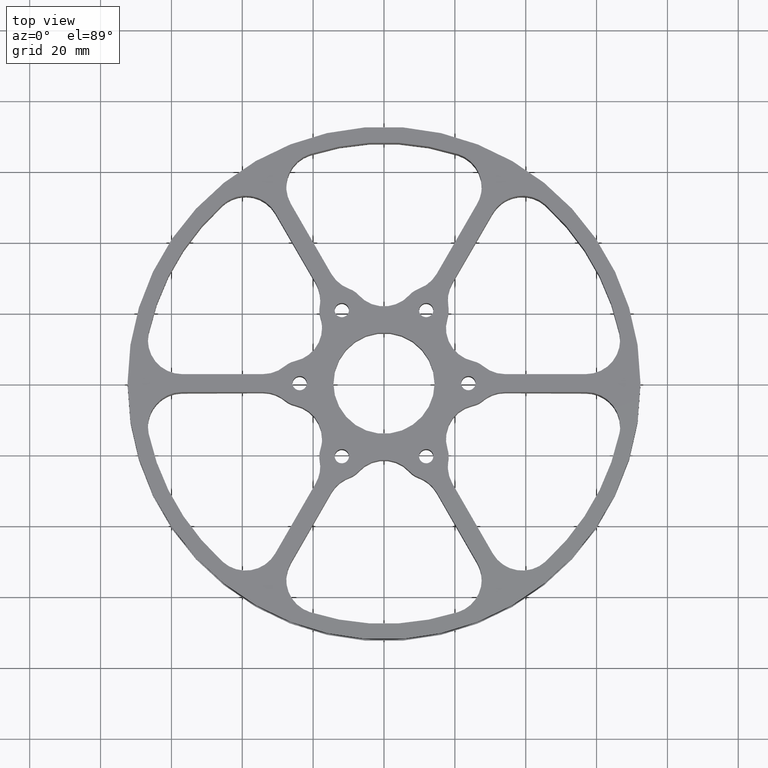
[diagram: clean part render]
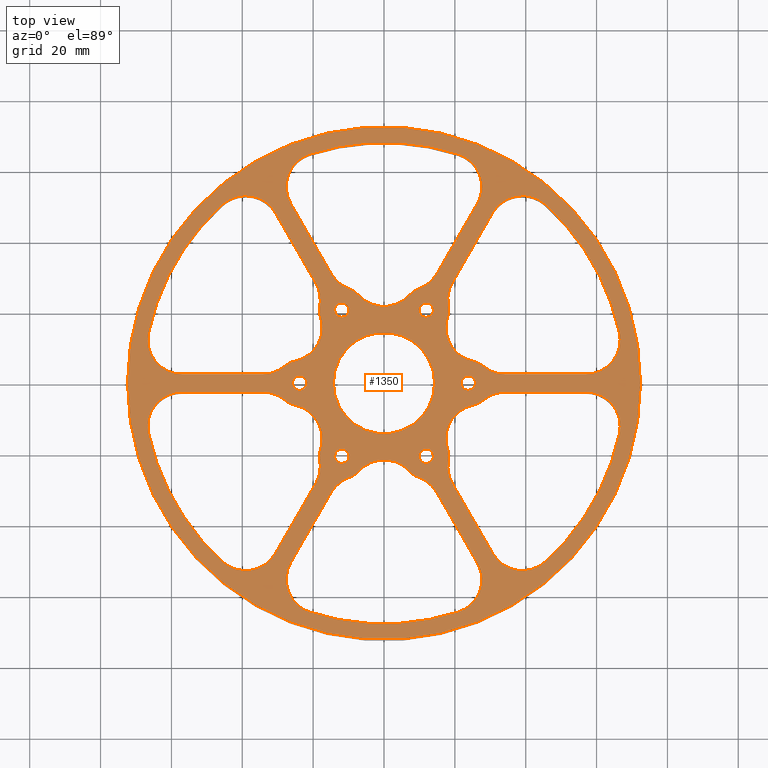
[diagram: same view with one face highlighted and labeled with its STEP entity id]
A machine part, top view. The second image highlights one B-rep face of the part: STEP entity #1350.
In plain terms, the highlighted planar face has unit normal (0, 0, 1).
Its self-contained STEP definition (entity closure, byte-faithful):
#3 = EDGE_CURVE ( 'NONE', #1620, #2620, #2794, .T. ) ;
#7 = CIRCLE ( 'NONE', #1625, 0.3800000000000001710 ) ;
#9 = ORIENTED_EDGE ( 'NONE', *, *, #1623, .T. ) ;
#14 = VERTEX_POINT ( 'NONE', #384 ) ;
#16 = AXIS2_PLACEMENT_3D ( 'NONE', #2337, #2662, #81 ) ;
#18 = ORIENTED_EDGE ( 'NONE', *, *, #2880, .F. ) ;
#19 = CIRCLE ( 'NONE', #1039, 0.07949999999999979305 ) ;
#33 = CIRCLE ( 'NONE', #2475, 0.07949999999999979305 ) ;
#37 = DIRECTION ( 'NONE',  ( -0.0000000000000000000, 3.061616997868408286E-17, -1.000000000000000000 ) ) ;
#42 = CIRCLE ( 'NONE', #4104, 0.07949999999999979305 ) ;
#56 = EDGE_CURVE ( 'NONE', #4003, #144, #696, .T. ) ;
#57 = EDGE_LOOP ( 'NONE', ( #322, #2660, #1137, #627, #3569, #1668, #642, #2638, #1188, #3950, #2010, #423 ) ) ;
#63 = CARTESIAN_POINT ( 'NONE',  ( -0.7146683537490232663, 0.8568895183025647677, 1.125000000000000000 ) ) ;
#72 = VERTEX_POINT ( 'NONE', #539 ) ;
#79 = CARTESIAN_POINT ( 'NONE',  ( 1.099422267961141841, -0.1904761904762019009, 1.125000000000000000 ) ) ;
#81 = DIRECTION ( 'NONE',  ( 0.0000000000000000000, 1.000000000000000000, 0.0000000000000000000 ) ) ;
#82 = CARTESIAN_POINT ( 'NONE',  ( -0.5861695172525729358, 1.215275385729623014, 1.125000000000000000 ) ) ;
#85 = VERTEX_POINT ( 'NONE', #559 ) ;
#93 = DIRECTION ( 'NONE',  ( -0.4999999999999920619, 0.8660254037844433705, 0.0000000000000000000 ) ) ;
#98 = DIRECTION ( 'NONE',  ( -0.4999999999999919509, 0.8660254037844433705, 0.0000000000000000000 ) ) ;
#103 = DIRECTION ( 'NONE',  ( 1.000000000000000000, 0.0000000000000000000, 0.0000000000000000000 ) ) ;
#106 = VERTEX_POINT ( 'NONE', #2113 ) ;
#108 = CARTESIAN_POINT ( 'NONE',  ( 1.423167634191664366, -2.264998650107610256, 1.125000000000000000 ) ) ;
#109 = CARTESIAN_POINT ( 'NONE',  ( -2.615838364180005815, -0.5594771241829875619, 1.125000000000000000 ) ) ;
#116 = CARTESIAN_POINT ( 'NONE',  ( -1.537813510787212845, -1.703571133249299985, 1.125000000000000000 ) ) ;
#117 = ORIENTED_EDGE ( 'NONE', *, *, #2861, .F. ) ;
#119 = EDGE_CURVE ( 'NONE', #2062, #904, #1812, .T. ) ;
#127 = CARTESIAN_POINT ( 'NONE',  ( -0.7064291231541066640, 2.183571133249319285, 1.125000000000000000 ) ) ;
#131 = ORIENTED_EDGE ( 'NONE', *, *, #2688, .F. ) ;
#137 = ORIENTED_EDGE ( 'NONE', *, *, #2569, .T. ) ;
#139 = EDGE_CURVE ( 'NONE', #2214, #2300, #3856, .T. ) ;
#142 = CARTESIAN_POINT ( 'NONE',  ( 1.086429123154122323, -2.183571133249313956, 1.125000000000000000 ) ) ;
#144 = VERTEX_POINT ( 'NONE', #3001 ) ;
#145 = CARTESIAN_POINT ( 'NONE',  ( 0.7187500000000109912, 0.8118988160479085892, 1.125000000000000000 ) ) ;
#156 = EDGE_CURVE ( 'NONE', #106, #2342, #3015, .T. ) ;
#162 = CIRCLE ( 'NONE', #2722, 0.3799999999999999489 ) ;
#164 = AXIS2_PLACEMENT_3D ( 'NONE', #2008, #1412, #1368 ) ;
#171 = DIRECTION ( 'NONE',  ( -0.5000000000000042188, -0.8660254037844361541, 0.0000000000000000000 ) ) ;
#179 = ORIENTED_EDGE ( 'NONE', *, *, #1496, .T. ) ;
#190 = DIRECTION ( 'NONE',  ( 0.0000000000000000000, 1.000000000000000000, 0.0000000000000000000 ) ) ;
#192 = CIRCLE ( 'NONE', #2992, 0.3800000000000000600 ) ;
#196 = VERTEX_POINT ( 'NONE', #328 ) ;
#201 = EDGE_CURVE ( 'NONE', #3125, #1911, #3116, .T. ) ;
#206 = ORIENTED_EDGE ( 'NONE', *, *, #4093, .T. ) ;
#211 = AXIS2_PLACEMENT_3D ( 'NONE', #1942, #2894, #2565 ) ;
#216 = AXIS2_PLACEMENT_3D ( 'NONE', #556, #2703, #2175 ) ;
#222 = CARTESIAN_POINT ( 'NONE',  ( 2.244242633941349041, 0.09999999999998378242, 1.125000000000000000 ) ) ;
#229 = AXIS2_PLACEMENT_3D ( 'NONE', #1824, #3774, #1499 ) ;
#230 = VERTEX_POINT ( 'NONE', #1934 ) ;
#246 = DIRECTION ( 'NONE',  ( 0.0000000000000000000, 1.000000000000000000, 0.0000000000000000000 ) ) ;
#247 = VERTEX_POINT ( 'NONE', #3340 ) ;
#252 = CIRCLE ( 'NONE', #421, 0.3800000000000000600 ) ;
#255 = AXIS2_PLACEMENT_3D ( 'NONE', #2676, #433, #2353 ) ;
#258 = DIRECTION ( 'NONE',  ( -0.5000000000000042188, -0.8660254037844361541, 0.0000000000000000000 ) ) ;
#268 = CIRCLE ( 'NONE', #1510, 0.2500000000000066613 ) ;
#277 = ORIENTED_EDGE ( 'NONE', *, *, #3477, .F. ) ;
#286 = DIRECTION ( 'NONE',  ( 1.000000000000000000, 0.0000000000000000000, 0.0000000000000000000 ) ) ;
#296 = VERTEX_POINT ( 'NONE', #3176 ) ;
#300 = CARTESIAN_POINT ( 'NONE',  ( 1.792440584468755649, 1.985643913482299183, 1.125000000000000000 ) ) ;
#302 = DIRECTION ( 'NONE',  ( -0.0000000000000000000, -0.0000000000000000000, -1.000000000000000000 ) ) ;
#305 = CARTESIAN_POINT ( 'NONE',  ( 0.9891476976426007983, -0.2446068587105139358, 1.125000000000000000 ) ) ;
#306 = AXIS2_PLACEMENT_3D ( 'NONE', #3091, #829, #2763 ) ;
#309 = LINE ( 'NONE', #1781, #628 ) ;
#311 = EDGE_CURVE ( 'NONE', #2741, #2307, #2111, .T. ) ;
#312 = CARTESIAN_POINT ( 'NONE',  ( 0.7187499999999980016, -0.8118988160479124749, 1.125000000000000000 ) ) ;
#313 = CIRCLE ( 'NONE', #2838, 0.2499999999999998057 ) ;
#316 = CIRCLE ( 'NONE', #1573, 0.07949999999999979305 ) ;
#319 = AXIS2_PLACEMENT_3D ( 'NONE', #1703, #2674, #98 ) ;
#320 = DIRECTION ( 'NONE',  ( 0.0000000000000000000, 0.0000000000000000000, 1.000000000000000000 ) ) ;
#322 = ORIENTED_EDGE ( 'NONE', *, *, #959, .F. ) ;
#324 = VERTEX_POINT ( 'NONE', #2881 ) ;
#328 = CARTESIAN_POINT ( 'NONE',  ( -0.7146683537490433613, -0.8568895183025518891, 1.125000000000000000 ) ) ;
#340 = DIRECTION ( 'NONE',  ( 0.5000000000000098810, 0.8660254037844329345, 0.0000000000000000000 ) ) ;
#345 = VERTEX_POINT ( 'NONE', #1031 ) ;
#353 = VECTOR ( 'NONE', #1618, 39.37007874015748854 ) ;
#359 = EDGE_CURVE ( 'NONE', #1117, #3430, #3696, .T. ) ;
#362 = CIRCLE ( 'NONE', #2194, 0.07949999999999979305 ) ;
#364 = FACE_BOUND ( 'NONE', #859, .T. ) ;
#374 = DIRECTION ( 'NONE',  ( 0.0000000000000000000, 1.000000000000000000, 0.0000000000000000000 ) ) ;
#376 = CARTESIAN_POINT ( 'NONE',  ( 1.377727649040773375E-16, 0.0000000000000000000, 1.125000000000000666 ) ) ;
#377 = EDGE_CURVE ( 'NONE', #3146, #1579, #2052, .T. ) ;
#382 = CARTESIAN_POINT ( 'NONE',  ( 0.2570798638144932147, -1.405275385729615856, 1.125000000000000000 ) ) ;
#384 = CARTESIAN_POINT ( 'NONE',  ( 2.624242633941350711, 0.4799999999999837730, 1.125000000000000000 ) ) ;
#389 = CIRCLE ( 'NONE', #255, 0.3800000000000002265 ) ;
#393 = CIRCLE ( 'NONE', #3989, 0.2500000000000067168 ) ;
#398 = EDGE_CURVE ( 'NONE', #144, #4003, #2729, .T. ) ;
#403 = ORIENTED_EDGE ( 'NONE', *, *, #3536, .F. ) ;
#405 = EDGE_CURVE ( 'NONE', #1334, #3119, #42, .T. ) ;
#408 = VERTEX_POINT ( 'NONE', #3473 ) ;
#419 = LINE ( 'NONE', #1544, #1040 ) ;
#420 = EDGE_CURVE ( 'NONE', #247, #1117, #3078, .T. ) ;
#421 = AXIS2_PLACEMENT_3D ( 'NONE', #1967, #1486, #2378 ) ;
#423 = ORIENTED_EDGE ( 'NONE', *, *, #460, .T. ) ;
#426 = EDGE_CURVE ( 'NONE', #1868, #3125, #2316, .T. ) ;
#432 = DIRECTION ( 'NONE',  ( 0.0000000000000000000, 0.0000000000000000000, 1.000000000000000000 ) ) ;
#433 = DIRECTION ( 'NONE',  ( 0.0000000000000000000, 0.0000000000000000000, 1.000000000000000000 ) ) ;
#443 = ORIENTED_EDGE ( 'NONE', *, *, #3913, .F. ) ;
#445 = CARTESIAN_POINT ( 'NONE',  ( 1.249962553434775137, -2.364998650107609457, 1.125000000000000000 ) ) ;
#453 = AXIS2_PLACEMENT_3D ( 'NONE', #848, #2781, #1798 ) ;
#458 = CARTESIAN_POINT ( 'NONE',  ( 1.249962553434841528, 2.364998650107573930, 1.125000000000000000 ) ) ;
#460 = EDGE_CURVE ( 'NONE', #2400, #3809, #831, .T. ) ;
#474 = DIRECTION ( 'NONE',  ( 0.0000000000000000000, 0.0000000000000000000, 1.000000000000000000 ) ) ;
#475 = EDGE_CURVE ( 'NONE', #1449, #324, #2982, .T. ) ;
#477 = AXIS2_PLACEMENT_3D ( 'NONE', #1381, #3972, #1075 ) ;
#485 = DIRECTION ( 'NONE',  ( 0.0000000000000000000, 0.0000000000000000000, 1.000000000000000000 ) ) ;
#493 = DIRECTION ( 'NONE',  ( 1.000000000000000000, 8.986342084421918015E-16, 0.0000000000000000000 ) ) ;
#502 = DIRECTION ( 'NONE',  ( -0.5000000000000101030, -0.8660254037844328234, 0.0000000000000000000 ) ) ;
#504 = ORIENTED_EDGE ( 'NONE', *, *, #3395, .F. ) ;
#506 = EDGE_CURVE ( 'NONE', #4034, #85, #2459, .T. ) ;
#508 = CARTESIAN_POINT ( 'NONE',  ( -0.6876521980593468530, 0.6164092839504820009, 1.125000000000000000 ) ) ;
#520 = VECTOR ( 'NONE', #3717, 39.37007874015748143 ) ;
#526 = CIRCLE ( 'NONE', #2367, 0.3800000000000000600 ) ;
#530 = CARTESIAN_POINT ( 'NONE',  ( 1.035518776592210699, -1.993571133249317562, 1.125000000000000000 ) ) ;
#539 = CARTESIAN_POINT ( 'NONE',  ( -1.345544115262075291, -0.09999999999998827882, 1.125000000000000000 ) ) ;
#544 = DIRECTION ( 'NONE',  ( -0.5000000000000041078, -0.8660254037844362651, 0.0000000000000000000 ) ) ;
#556 = CARTESIAN_POINT ( 'NONE',  ( -1.067652198059360735, -0.6164092839504583532, 1.125000000000000000 ) ) ;
#559 = CARTESIAN_POINT ( 'NONE',  ( 1.099422267961141619, 0.1904761904761857194, 1.125000000000000000 ) ) ;
#560 = AXIS2_PLACEMENT_3D ( 'NONE', #1757, #3700, #1432 ) ;
#561 = CARTESIAN_POINT ( 'NONE',  ( -0.4687500000000098810, -0.8118988160479059246, 1.125000000000000444 ) ) ;
#575 = CARTESIAN_POINT ( 'NONE',  ( 0.0000000000000000000, 0.0000000000000000000, 1.125000000000000000 ) ) ;
#596 = CARTESIAN_POINT ( 'NONE',  ( -0.4687500000000098810, -0.8913988160479057177, 1.125000000000000444 ) ) ;
#608 = CARTESIAN_POINT ( 'NONE',  ( 1.345544115262077289, 0.4799999999999883249, 1.125000000000000000 ) ) ;
#615 = CARTESIAN_POINT ( 'NONE',  ( -0.7064096024045146693, -0.7343236048981258701, 1.125000000000000000 ) ) ;
#617 = EDGE_CURVE ( 'NONE', #3417, #2604, #3733, .T. ) ;
#618 = DIRECTION ( 'NONE',  ( 0.4999999999999918954, -0.8660254037844433705, 0.0000000000000000000 ) ) ;
#620 = ORIENTED_EDGE ( 'NONE', *, *, #2926, .T. ) ;
#627 = ORIENTED_EDGE ( 'NONE', *, *, #420, .F. ) ;
#628 = VECTOR ( 'NONE', #171, 39.37007874015748854 ) ;
#632 = CIRCLE ( 'NONE', #1771, 0.07949999999999979305 ) ;
#633 = CARTESIAN_POINT ( 'NONE',  ( 0.8233977797112317365, -2.545121037665322827, 1.125000000000000000 ) ) ;
#642 = ORIENTED_EDGE ( 'NONE', *, *, #1751, .F. ) ;
#659 = ORIENTED_EDGE ( 'NONE', *, *, #765, .T. ) ;
#670 = DIRECTION ( 'NONE',  ( 0.0000000000000000000, 0.0000000000000000000, 1.000000000000000000 ) ) ;
#671 = VERTEX_POINT ( 'NONE', #2386 ) ;
#678 = ORIENTED_EDGE ( 'NONE', *, *, #2715, .T. ) ;
#685 = DIRECTION ( 'NONE',  ( 0.0000000000000000000, 0.0000000000000000000, 1.000000000000000000 ) ) ;
#687 = DIRECTION ( 'NONE',  ( 0.4999999999999855671, -0.8660254037844469233, 0.0000000000000000000 ) ) ;
#692 = VERTEX_POINT ( 'NONE', #145 ) ;
#696 = CIRCLE ( 'NONE', #2749, 0.07949999999999979305 ) ;
#703 = CARTESIAN_POINT ( 'NONE',  ( -0.2827380952380753043, 0.9789304636086408884, 1.125000000000000000 ) ) ;
#705 = FACE_BOUND ( 'NONE', #1465, .T. ) ;
#714 = DIRECTION ( 'NONE',  ( 0.0000000000000000000, 0.0000000000000000000, 1.000000000000000000 ) ) ;
#725 = DIRECTION ( 'NONE',  ( 0.0000000000000000000, 0.0000000000000000000, 1.000000000000000000 ) ) ;
#733 = DIRECTION ( 'NONE',  ( -0.5000000000000084377, -0.8660254037844337116, 0.0000000000000000000 ) ) ;
#735 = AXIS2_PLACEMENT_3D ( 'NONE', #1084, #2222, #1898 ) ;
#738 = CIRCLE ( 'NONE', #1745, 0.3800000000000001710 ) ;
#740 = VERTEX_POINT ( 'NONE', #63 ) ;
#741 = CARTESIAN_POINT ( 'NONE',  ( -1.423167634191696562, -2.264998650107590272, 1.125000000000000000 ) ) ;
#744 = EDGE_CURVE ( 'NONE', #2576, #2864, #2325, .T. ) ;
#749 = ORIENTED_EDGE ( 'NONE', *, *, #3564, .T. ) ;
#755 = AXIS2_PLACEMENT_3D ( 'NONE', #2904, #320, #2573 ) ;
#762 = DIRECTION ( 'NONE',  ( 1.000000000000000000, 0.0000000000000000000, 0.0000000000000000000 ) ) ;
#763 = ORIENTED_EDGE ( 'NONE', *, *, #1158, .F. ) ;
#764 = CIRCLE ( 'NONE', #3584, 0.3800000000000000600 ) ;
#765 = EDGE_CURVE ( 'NONE', #1409, #1613, #362, .T. ) ;
#766 = AXIS2_PLACEMENT_3D ( 'NONE', #127, #2056, #3995 ) ;
#772 = EDGE_CURVE ( 'NONE', #2556, #3983, #313, .T. ) ;
#778 = CARTESIAN_POINT ( 'NONE',  ( -0.7064291231541689475, -2.183571133249298857, 1.125000000000000000 ) ) ;
#790 = CARTESIAN_POINT ( 'NONE',  ( 0.2827380952380822432, -0.9789304636086388900, 1.125000000000000000 ) ) ;
#794 = VERTEX_POINT ( 'NONE', #4023 ) ;
#796 = EDGE_CURVE ( 'NONE', #3755, #14, #2122, .T. ) ;
#802 = CARTESIAN_POINT ( 'NONE',  ( -1.067652198059346969, 0.6164092839504820009, 1.125000000000000000 ) ) ;
#808 = ORIENTED_EDGE ( 'NONE', *, *, #2599, .T. ) ;
#809 = AXIS2_PLACEMENT_3D ( 'NONE', #3428, #1481, #2265 ) ;
#819 = CARTESIAN_POINT ( 'NONE',  ( 2.233285734820535038E-14, 1.232818567900930473, 1.125000000000000000 ) ) ;
#829 = DIRECTION ( 'NONE',  ( 0.0000000000000000000, 0.0000000000000000000, 1.000000000000000000 ) ) ;
#831 = CIRCLE ( 'NONE', #2695, 0.3800000000000000600 ) ;
#837 = VERTEX_POINT ( 'NONE', #3752 ) ;
#841 = ORIENTED_EDGE ( 'NONE', *, *, #1474, .F. ) ;
#848 = CARTESIAN_POINT ( 'NONE',  ( 0.0000000000000000000, 0.0000000000000000000, 1.125000000000000000 ) ) ;
#849 = DIRECTION ( 'NONE',  ( 0.5000000000000039968, 0.8660254037844364872, 0.0000000000000000000 ) ) ;
#854 = CARTESIAN_POINT ( 'NONE',  ( 0.7593745980094865899, 1.115275385729609159, 1.125000000000000000 ) ) ;
#859 = EDGE_LOOP ( 'NONE', ( #620, #3382 ) ) ;
#863 = ORIENTED_EDGE ( 'NONE', *, *, #156, .T. ) ;
#873 = CARTESIAN_POINT ( 'NONE',  ( 0.4687499999999922839, -0.8118988160479160276, 1.125000000000000444 ) ) ;
#886 = DIRECTION ( 'NONE',  ( 1.000000000000000000, 0.0000000000000000000, 0.0000000000000000000 ) ) ;
#893 = DIRECTION ( 'NONE',  ( 1.000000000000000000, 0.0000000000000000000, 0.0000000000000000000 ) ) ;
#895 = LINE ( 'NONE', #930, #1752 ) ;
#897 = CARTESIAN_POINT ( 'NONE',  ( -1.537813510787176208, 1.703571133249333291, 1.125000000000000000 ) ) ;
#900 = EDGE_CURVE ( 'NONE', #85, #408, #2428, .T. ) ;
#904 = VERTEX_POINT ( 'NONE', #305 ) ;
#912 = CARTESIAN_POINT ( 'NONE',  ( 0.4687499999999922839, -0.8118988160479160276, 1.125000000000000444 ) ) ;
#916 = FACE_BOUND ( 'NONE', #2551, .T. ) ;
#917 = DIRECTION ( 'NONE',  ( 0.0000000000000000000, 0.0000000000000000000, 1.000000000000000000 ) ) ;
#930 = CARTESIAN_POINT ( 'NONE',  ( -2.673130187626483689, -0.09999999999998161748, 1.125000000000000000 ) ) ;
#941 = CIRCLE ( 'NONE', #1904, 0.3799999999999998934 ) ;
#945 = AXIS2_PLACEMENT_3D ( 'NONE', #3347, #1080, #1406 ) ;
#946 = CIRCLE ( 'NONE', #453, 2.850000000000000533 ) ;
#952 = DIRECTION ( 'NONE',  ( 0.0000000000000000000, 1.000000000000000000, 0.0000000000000000000 ) ) ;
#958 = CARTESIAN_POINT ( 'NONE',  ( 1.088464251447556874, -0.9252753857296240891, 1.125000000000000000 ) ) ;
#959 = EDGE_CURVE ( 'NONE', #3805, #3809, #4182, .T. ) ;
#972 = ORIENTED_EDGE ( 'NONE', *, *, #398, .T. ) ;
#975 = DIRECTION ( 'NONE',  ( 0.5000000000000144329, 0.8660254037844303809, 0.0000000000000000000 ) ) ;
#986 = EDGE_CURVE ( 'NONE', #1216, #1145, #4189, .T. ) ;
#1009 = VECTOR ( 'NONE', #1194, 39.37007874015748143 ) ;
#1010 = ORIENTED_EDGE ( 'NONE', *, *, #3740, .T. ) ;
#1012 = CARTESIAN_POINT ( 'NONE',  ( -1.249962553434758483, 2.364998650107618339, 1.125000000000000000 ) ) ;
#1013 = DIRECTION ( 'NONE',  ( 1.000000000000000000, 0.0000000000000000000, 0.0000000000000000000 ) ) ;
#1020 = VERTEX_POINT ( 'NONE', #82 ) ;
#1027 = CARTESIAN_POINT ( 'NONE',  ( 1.792440584468727005, -1.985643913482325607, 1.125000000000000000 ) ) ;
#1031 = CARTESIAN_POINT ( 'NONE',  ( -1.035518776592253554, -1.993571133249295801, 1.125000000000000000 ) ) ;
#1036 = CIRCLE ( 'NONE', #2806, 2.674999999999999378 ) ;
#1038 = CARTESIAN_POINT ( 'NONE',  ( 0.9375000000000003331, -1.991952822626510649E-14, 1.125000000000000444 ) ) ;
#1039 = AXIS2_PLACEMENT_3D ( 'NONE', #1038, #1349, #3021 ) ;
#1040 = VECTOR ( 'NONE', #3032, 39.37007874015748143 ) ;
#1044 = EDGE_CURVE ( 'NONE', #408, #2786, #3803, .T. ) ;
#1058 = ORIENTED_EDGE ( 'NONE', *, *, #377, .F. ) ;
#1060 = CARTESIAN_POINT ( 'NONE',  ( -2.244242633941346377, 0.1000000000000318828, 1.125000000000000000 ) ) ;
#1062 = EDGE_CURVE ( 'NONE', #1270, #1469, #2097, .T. ) ;
#1064 = DIRECTION ( 'NONE',  ( 0.0000000000000000000, 0.0000000000000000000, -1.000000000000000000 ) ) ;
#1067 = EDGE_CURVE ( 'NONE', #692, #2866, #2257, .T. ) ;
#1075 = DIRECTION ( 'NONE',  ( 1.000000000000000000, 7.189073667537533228E-16, 0.0000000000000000000 ) ) ;
#1080 = DIRECTION ( 'NONE',  ( -0.0000000000000000000, -0.0000000000000000000, -1.000000000000000000 ) ) ;
#1084 = CARTESIAN_POINT ( 'NONE',  ( 2.244242633941350817, 0.4799999999999837730, 1.125000000000000000 ) ) ;
#1087 = VERTEX_POINT ( 'NONE', #1846 ) ;
#1109 = DIRECTION ( 'NONE',  ( -1.000000000000000000, 5.041501808283719551E-15, 0.0000000000000000000 ) ) ;
#1117 = VERTEX_POINT ( 'NONE', #1622 ) ;
#1125 = EDGE_CURVE ( 'NONE', #1213, #1216, #3088, .T. ) ;
#1132 = DIRECTION ( 'NONE',  ( 0.0000000000000000000, 0.0000000000000000000, 1.000000000000000000 ) ) ;
#1133 = CIRCLE ( 'NONE', #945, 0.3800000000000000600 ) ;
#1137 = ORIENTED_EDGE ( 'NONE', *, *, #359, .F. ) ;
#1145 = VERTEX_POINT ( 'NONE', #1199 ) ;
#1158 = EDGE_CURVE ( 'NONE', #196, #1620, #2774, .T. ) ;
#1160 = DIRECTION ( 'NONE',  ( -1.000000000000000000, 0.0000000000000000000, 2.428309327701566812E-16 ) ) ;
#1167 = AXIS2_PLACEMENT_3D ( 'NONE', #2461, #1064, #258 ) ;
#1173 = CARTESIAN_POINT ( 'NONE',  ( 2.850000000000000533, 3.490243377569957540E-16, 1.125000000000000000 ) ) ;
#1177 = CARTESIAN_POINT ( 'NONE',  ( -0.4687499999999922839, 0.7323988160479162346, 1.125000000000000444 ) ) ;
#1178 = CARTESIAN_POINT ( 'NONE',  ( -0.2570798638145246895, -1.405275385729608972, 1.125000000000000000 ) ) ;
#1183 = DIRECTION ( 'NONE',  ( -1.224646799147353454E-16, 0.0000000000000000000, -1.000000000000000000 ) ) ;
#1188 = ORIENTED_EDGE ( 'NONE', *, *, #2245, .F. ) ;
#1194 = DIRECTION ( 'NONE',  ( 1.000000000000000000, -5.041501808283719551E-15, -0.0000000000000000000 ) ) ;
#1199 = CARTESIAN_POINT ( 'NONE',  ( -0.7084642514475723019, -0.9252753857296076578, 1.125000000000000000 ) ) ;
#1200 = DIRECTION ( 'NONE',  ( 0.4999999999999916733, -0.8660254037844433705, 0.0000000000000000000 ) ) ;
#1201 = EDGE_CURVE ( 'NONE', #2300, #1343, #1207, .T. ) ;
#1203 = DIRECTION ( 'NONE',  ( -0.0000000000000000000, -3.061616997868370692E-17, -1.000000000000000000 ) ) ;
#1207 = CIRCLE ( 'NONE', #1374, 0.3799999999999998379 ) ;
#1213 = VERTEX_POINT ( 'NONE', #3896 ) ;
#1216 = VERTEX_POINT ( 'NONE', #2993 ) ;
#1221 = FACE_BOUND ( 'NONE', #3585, .T. ) ;
#1223 = DIRECTION ( 'NONE',  ( 0.0000000000000000000, -0.0000000000000000000, -1.000000000000000000 ) ) ;
#1239 = AXIS2_PLACEMENT_3D ( 'NONE', #2946, #685, #2614 ) ;
#1242 = CARTESIAN_POINT ( 'NONE',  ( 0.7146683537490433613, 0.8568895183025518891, 1.125000000000000000 ) ) ;
#1253 = CARTESIAN_POINT ( 'NONE',  ( 0.9375000000000003331, -1.991952822626510649E-14, 1.125000000000000444 ) ) ;
#1255 = EDGE_CURVE ( 'NONE', #14, #2786, #3685, .T. ) ;
#1257 = ORIENTED_EDGE ( 'NONE', *, *, #3348, .F. ) ;
#1266 = ORIENTED_EDGE ( 'NONE', *, *, #1286, .T. ) ;
#1267 = DIRECTION ( 'NONE',  ( 0.0000000000000000000, 0.0000000000000000000, 1.000000000000000000 ) ) ;
#1270 = VERTEX_POINT ( 'NONE', #2039 ) ;
#1272 = CARTESIAN_POINT ( 'NONE',  ( 0.4687500000000094924, 0.8118988160479059246, 1.125000000000000000 ) ) ;
#1280 = AXIS2_PLACEMENT_3D ( 'NONE', #116, #4028, #2197 ) ;
#1282 = CARTESIAN_POINT ( 'NONE',  ( 2.244242633941350817, 0.4799999999999837730, 1.125000000000000000 ) ) ;
#1286 = EDGE_CURVE ( 'NONE', #2345, #4043, #1133, .T. ) ;
#1294 = DIRECTION ( 'NONE',  ( 0.5000000000000042188, 0.8660254037844362651, 0.0000000000000000000 ) ) ;
#1300 = CIRCLE ( 'NONE', #3354, 0.07949999999999979305 ) ;
#1307 = DIRECTION ( 'NONE',  ( -0.0000000000000000000, -0.0000000000000000000, -1.000000000000000000 ) ) ;
#1317 = FACE_BOUND ( 'NONE', #3927, .T. ) ;
#1330 = LINE ( 'NONE', #2269, #3415 ) ;
#1333 = AXIS2_PLACEMENT_3D ( 'NONE', #3434, #1183, #1160 ) ;
#1334 = VERTEX_POINT ( 'NONE', #2067 ) ;
#1337 = CARTESIAN_POINT ( 'NONE',  ( -2.244242633941340603, 0.4800000000000319011, 1.125000000000000000 ) ) ;
#1338 = EDGE_LOOP ( 'NONE', ( #9, #3393 ) ) ;
#1341 = CARTESIAN_POINT ( 'NONE',  ( 0.4687499999999981681, -0.8118988160479124749, 1.125000000000000000 ) ) ;
#1343 = VERTEX_POINT ( 'NONE', #4000 ) ;
#1347 = ORIENTED_EDGE ( 'NONE', *, *, #1067, .F. ) ;
#1349 = DIRECTION ( 'NONE',  ( -0.0000000000000000000, -3.061616997868444648E-17, -1.000000000000000000 ) ) ;
#1350 = ADVANCED_FACE ( 'NONE', ( #3526, #2115, #2596, #2164, #705, #1831, #3745, #1317, #1425, #1221, #3141, #3811, #916, #364 ), #3065, .T. ) ;
#1353 = ORIENTED_EDGE ( 'NONE', *, *, #56, .T. ) ;
#1359 = EDGE_CURVE ( 'NONE', #3465, #3146, #309, .T. ) ;
#1360 = AXIS2_PLACEMENT_3D ( 'NONE', #3160, #1672, #3623 ) ;
#1361 = ORIENTED_EDGE ( 'NONE', *, *, #3368, .T. ) ;
#1368 = DIRECTION ( 'NONE',  ( 0.4999999999999979461, -0.8660254037844398178, 0.0000000000000000000 ) ) ;
#1374 = AXIS2_PLACEMENT_3D ( 'NONE', #3965, #1696, #93 ) ;
#1376 = CARTESIAN_POINT ( 'NONE',  ( 0.9891476976426036849, 0.2446068587104990588, 1.125000000000000000 ) ) ;
#1380 = DIRECTION ( 'NONE',  ( 0.0000000000000000000, 0.0000000000000000000, 1.000000000000000000 ) ) ;
#1381 = CARTESIAN_POINT ( 'NONE',  ( 1.537813510787187976, -1.703571133249321967, 1.125000000000000000 ) ) ;
#1386 = AXIS2_PLACEMENT_3D ( 'NONE', #802, #1132, #3392 ) ;
#1406 = DIRECTION ( 'NONE',  ( 1.000000000000000000, 0.0000000000000000000, 0.0000000000000000000 ) ) ;
#1409 = VERTEX_POINT ( 'NONE', #2779 ) ;
#1412 = DIRECTION ( 'NONE',  ( 0.0000000000000000000, 0.0000000000000000000, 1.000000000000000000 ) ) ;
#1425 = FACE_BOUND ( 'NONE', #2161, .T. ) ;
#1430 = AXIS2_PLACEMENT_3D ( 'NONE', #4157, #917, #4082 ) ;
#1432 = DIRECTION ( 'NONE',  ( -0.5000000000000101030, -0.8660254037844327124, 0.0000000000000000000 ) ) ;
#1444 = ORIENTED_EDGE ( 'NONE', *, *, #1795, .F. ) ;
#1449 = VERTEX_POINT ( 'NONE', #2149 ) ;
#1454 = DIRECTION ( 'NONE',  ( 1.000000000000000000, 0.0000000000000000000, -0.0000000000000000000 ) ) ;
#1455 = ORIENTED_EDGE ( 'NONE', *, *, #3145, .T. ) ;
#1465 = EDGE_LOOP ( 'NONE', ( #841, #1536, #3204, #3977, #2187, #1735, #1629, #1347, #2558, #1058, #3211, #1361 ) ) ;
#1469 = VERTEX_POINT ( 'NONE', #3120 ) ;
#1470 = EDGE_CURVE ( 'NONE', #2620, #1449, #1782, .T. ) ;
#1474 = EDGE_CURVE ( 'NONE', #3755, #4005, #1036, .T. ) ;
#1481 = DIRECTION ( 'NONE',  ( 0.0000000000000000000, 0.0000000000000000000, 1.000000000000000000 ) ) ;
#1486 = DIRECTION ( 'NONE',  ( -0.0000000000000000000, -0.0000000000000000000, -1.000000000000000000 ) ) ;
#1496 = EDGE_CURVE ( 'NONE', #3372, #2429, #526, .T. ) ;
#1499 = DIRECTION ( 'NONE',  ( -0.5000000000000102141, -0.8660254037844327124, 0.0000000000000000000 ) ) ;
#1503 = VERTEX_POINT ( 'NONE', #2808 ) ;
#1510 = AXIS2_PLACEMENT_3D ( 'NONE', #4144, #2215, #1200 ) ;
#1514 = ORIENTED_EDGE ( 'NONE', *, *, #475, .F. ) ;
#1522 = DIRECTION ( 'NONE',  ( 0.4999999999999918954, -0.8660254037844433705, 0.0000000000000000000 ) ) ;
#1532 = VECTOR ( 'NONE', #687, 39.37007874015748854 ) ;
#1536 = ORIENTED_EDGE ( 'NONE', *, *, #796, .T. ) ;
#1544 = CARTESIAN_POINT ( 'NONE',  ( -1.423167634191648601, 2.264998650107620026, 1.125000000000000000 ) ) ;
#1556 = DIRECTION ( 'NONE',  ( -0.0000000000000000000, 0.0000000000000000000, -1.000000000000000000 ) ) ;
#1572 = EDGE_CURVE ( 'NONE', #1343, #4100, #268, .T. ) ;
#1573 = AXIS2_PLACEMENT_3D ( 'NONE', #3994, #2013, #3002 ) ;
#1574 = DIRECTION ( 'NONE',  ( 0.0000000000000000000, 1.000000000000000000, 0.0000000000000000000 ) ) ;
#1576 = ORIENTED_EDGE ( 'NONE', *, *, #744, .T. ) ;
#1578 = EDGE_CURVE ( 'NONE', #1503, #794, #3500, .T. ) ;
#1579 = VERTEX_POINT ( 'NONE', #1242 ) ;
#1599 = DIRECTION ( 'NONE',  ( -0.0000000000000000000, -0.0000000000000000000, -1.000000000000000000 ) ) ;
#1607 = EDGE_CURVE ( 'NONE', #740, #3712, #3768, .T. ) ;
#1613 = VERTEX_POINT ( 'NONE', #4156 ) ;
#1618 = DIRECTION ( 'NONE',  ( 0.4999999999999935052, -0.8660254037844422603, 0.0000000000000000000 ) ) ;
#1620 = VERTEX_POINT ( 'NONE', #615 ) ;
#1622 = CARTESIAN_POINT ( 'NONE',  ( 0.7593745980094688264, -1.115275385729621593, 1.125000000000000000 ) ) ;
#1623 = EDGE_CURVE ( 'NONE', #3119, #1334, #1300, .T. ) ;
#1625 = AXIS2_PLACEMENT_3D ( 'NONE', #1178, #3111, #849 ) ;
#1628 = CARTESIAN_POINT ( 'NONE',  ( -0.4687499999999922839, 0.8913988160479158207, 1.125000000000000444 ) ) ;
#1629 = ORIENTED_EDGE ( 'NONE', *, *, #2474, .F. ) ;
#1631 = EDGE_CURVE ( 'NONE', #3417, #2345, #2975, .T. ) ;
#1638 = VERTEX_POINT ( 'NONE', #4180 ) ;
#1646 = CARTESIAN_POINT ( 'NONE',  ( -0.9375000000000004441, 1.336309304147087792E-14, 1.125000000000000444 ) ) ;
#1665 = CARTESIAN_POINT ( 'NONE',  ( 0.5861695172526182329, 1.215275385729601254, 1.125000000000000000 ) ) ;
#1668 = ORIENTED_EDGE ( 'NONE', *, *, #772, .F. ) ;
#1669 = AXIS2_PLACEMENT_3D ( 'NONE', #3776, #2476, #893 ) ;
#1671 = CARTESIAN_POINT ( 'NONE',  ( -0.7593745980094610548, 1.115275385729626922, 1.125000000000000000 ) ) ;
#1672 = DIRECTION ( 'NONE',  ( 0.0000000000000000000, 0.0000000000000000000, 1.000000000000000000 ) ) ;
#1694 = DIRECTION ( 'NONE',  ( -1.000000000000000000, 0.0000000000000000000, 0.0000000000000000000 ) ) ;
#1696 = DIRECTION ( 'NONE',  ( 0.0000000000000000000, 0.0000000000000000000, 1.000000000000000000 ) ) ;
#1698 = ORIENTED_EDGE ( 'NONE', *, *, #4098, .F. ) ;
#1702 = ORIENTED_EDGE ( 'NONE', *, *, #139, .F. ) ;
#1703 = CARTESIAN_POINT ( 'NONE',  ( 0.0000000000000000000, 0.0000000000000000000, 1.125000000000000000 ) ) ;
#1708 = EDGE_CURVE ( 'NONE', #1718, #1020, #2597, .T. ) ;
#1718 = VERTEX_POINT ( 'NONE', #2947 ) ;
#1720 = AXIS2_PLACEMENT_3D ( 'NONE', #1253, #3523, #1574 ) ;
#1735 = ORIENTED_EDGE ( 'NONE', *, *, #506, .F. ) ;
#1744 = CARTESIAN_POINT ( 'NONE',  ( 2.244242633941343712, -0.4800000000000162470, 1.125000000000000000 ) ) ;
#1745 = AXIS2_PLACEMENT_3D ( 'NONE', #2732, #2856, #3800 ) ;
#1751 = EDGE_CURVE ( 'NONE', #904, #2556, #1787, .T. ) ;
#1752 = VECTOR ( 'NONE', #1109, 39.37007874015748143 ) ;
#1757 = CARTESIAN_POINT ( 'NONE',  ( 0.2570798638145346815, 1.405275385729606752, 1.125000000000000000 ) ) ;
#1771 = AXIS2_PLACEMENT_3D ( 'NONE', #2802, #1935, #3087 ) ;
#1780 = ORIENTED_EDGE ( 'NONE', *, *, #1927, .F. ) ;
#1781 = CARTESIAN_POINT ( 'NONE',  ( 1.423167634191696562, 2.264998650107590272, 1.125000000000000000 ) ) ;
#1782 = CIRCLE ( 'NONE', #216, 0.3800000000000001710 ) ;
#1785 = DIRECTION ( 'NONE',  ( -0.5000000000000039968, -0.8660254037844362651, 0.0000000000000000000 ) ) ;
#1787 = CIRCLE ( 'NONE', #1430, 0.3800000000000002820 ) ;
#1791 = CIRCLE ( 'NONE', #3262, 0.2500000000000067168 ) ;
#1795 = EDGE_CURVE ( 'NONE', #3712, #3829, #162, .T. ) ;
#1798 = DIRECTION ( 'NONE',  ( 1.000000000000000000, 0.0000000000000000000, 0.0000000000000000000 ) ) ;
#1799 = EDGE_LOOP ( 'NONE', ( #678, #137 ) ) ;
#1812 = CIRCLE ( 'NONE', #4050, 0.2500000000000067168 ) ;
#1824 = CARTESIAN_POINT ( 'NONE',  ( -0.4687499999999860667, 0.8118988160479192473, 1.125000000000000000 ) ) ;
#1831 = FACE_BOUND ( 'NONE', #57, .T. ) ;
#1838 = CARTESIAN_POINT ( 'NONE',  ( 0.5861695172525814845, -1.215275385729619018, 1.125000000000000000 ) ) ;
#1846 = CARTESIAN_POINT ( 'NONE',  ( -0.4687500000000098810, -0.7323988160479061316, 1.125000000000000444 ) ) ;
#1850 = DIRECTION ( 'NONE',  ( 1.000000000000000000, 0.0000000000000000000, 0.0000000000000000000 ) ) ;
#1858 = CARTESIAN_POINT ( 'NONE',  ( -0.4687499999999922839, 0.8118988160479160276, 1.125000000000000444 ) ) ;
#1865 = CARTESIAN_POINT ( 'NONE',  ( -2.244242633941350817, -0.4799999999999837730, 1.125000000000000000 ) ) ;
#1868 = VERTEX_POINT ( 'NONE', #790 ) ;
#1869 = VECTOR ( 'NONE', #975, 39.37007874015748854 ) ;
#1874 = DIRECTION ( 'NONE',  ( 0.0000000000000000000, 0.0000000000000000000, -1.000000000000000000 ) ) ;
#1875 = EDGE_CURVE ( 'NONE', #671, #345, #3046, .T. ) ;
#1893 = AXIS2_PLACEMENT_3D ( 'NONE', #3458, #1307, #2541 ) ;
#1898 = DIRECTION ( 'NONE',  ( 1.000000000000000000, 0.0000000000000000000, 0.0000000000000000000 ) ) ;
#1902 = EDGE_CURVE ( 'NONE', #2604, #837, #2731, .T. ) ;
#1904 = AXIS2_PLACEMENT_3D ( 'NONE', #2868, #670, #2785 ) ;
#1911 = VERTEX_POINT ( 'NONE', #2548 ) ;
#1912 = VERTEX_POINT ( 'NONE', #4071 ) ;
#1918 = CARTESIAN_POINT ( 'NONE',  ( 0.9374999999999998890, -7.307693383051903666E-15, 1.125000000000000000 ) ) ;
#1922 = AXIS2_PLACEMENT_3D ( 'NONE', #1337, #3276, #1013 ) ;
#1927 = EDGE_CURVE ( 'NONE', #1968, #3925, #4053, .T. ) ;
#1929 = CARTESIAN_POINT ( 'NONE',  ( 2.244242633941343712, -0.4800000000000162470, 1.125000000000000000 ) ) ;
#1930 = LINE ( 'NONE', #2739, #520 ) ;
#1934 = CARTESIAN_POINT ( 'NONE',  ( -0.3847539142120867672, 1.047365708778755788, 1.125000000000000000 ) ) ;
#1935 = DIRECTION ( 'NONE',  ( -0.0000000000000000000, 3.061616997868408286E-17, -1.000000000000000000 ) ) ;
#1942 = CARTESIAN_POINT ( 'NONE',  ( -0.9375000000000000000, 0.0000000000000000000, 1.125000000000000000 ) ) ;
#1946 = ORIENTED_EDGE ( 'NONE', *, *, #1125, .F. ) ;
#1958 = EDGE_CURVE ( 'NONE', #2156, #1638, #3659, .T. ) ;
#1964 = LINE ( 'NONE', #458, #1869 ) ;
#1967 = CARTESIAN_POINT ( 'NONE',  ( 0.7064291231541844907, 2.183571133249294416, 1.125000000000000000 ) ) ;
#1968 = VERTEX_POINT ( 'NONE', #2350 ) ;
#1983 = CIRCLE ( 'NONE', #1360, 0.3799999999999998934 ) ;
#1994 = DIRECTION ( 'NONE',  ( 0.4999999999999980571, -0.8660254037844398178, 0.0000000000000000000 ) ) ;
#2008 = CARTESIAN_POINT ( 'NONE',  ( 0.0000000000000000000, 0.0000000000000000000, 1.125000000000000000 ) ) ;
#2010 = ORIENTED_EDGE ( 'NONE', *, *, #2800, .T. ) ;
#2012 = DIRECTION ( 'NONE',  ( 1.000000000000000000, 0.0000000000000000000, 0.0000000000000000000 ) ) ;
#2013 = DIRECTION ( 'NONE',  ( -0.0000000000000000000, -3.061616997868370692E-17, -1.000000000000000000 ) ) ;
#2016 = AXIS2_PLACEMENT_3D ( 'NONE', #1272, #1223, #340 ) ;
#2020 = DIRECTION ( 'NONE',  ( 0.4999999999999983902, -0.8660254037844395958, 0.0000000000000000000 ) ) ;
#2039 = CARTESIAN_POINT ( 'NONE',  ( 1.086429123154184495, 2.183571133249294416, 1.125000000000000000 ) ) ;
#2048 = CIRCLE ( 'NONE', #560, 0.3800000000000000600 ) ;
#2050 = AXIS2_PLACEMENT_3D ( 'NONE', #2233, #302, #2557 ) ;
#2052 = CIRCLE ( 'NONE', #2232, 0.3799999999999998934 ) ;
#2056 = DIRECTION ( 'NONE',  ( -0.0000000000000000000, -0.0000000000000000000, -1.000000000000000000 ) ) ;
#2059 = VERTEX_POINT ( 'NONE', #2587 ) ;
#2061 = AXIS2_PLACEMENT_3D ( 'NONE', #819, #2754, #502 ) ;
#2062 = VERTEX_POINT ( 'NONE', #79 ) ;
#2067 = CARTESIAN_POINT ( 'NONE',  ( 0.4687500000000154321, 0.7323988160479028009, 1.125000000000000444 ) ) ;
#2075 = CIRCLE ( 'NONE', #3959, 0.07949999999999979305 ) ;
#2097 = CIRCLE ( 'NONE', #1669, 0.3800000000000000600 ) ;
#2103 = CARTESIAN_POINT ( 'NONE',  ( 0.0000000000000000000, 0.0000000000000000000, 1.125000000000000000 ) ) ;
#2107 = CIRCLE ( 'NONE', #229, 0.2500000000000067168 ) ;
#2111 = CIRCLE ( 'NONE', #2016, 0.2499999999999998890 ) ;
#2113 = CARTESIAN_POINT ( 'NONE',  ( 0.5625000000000002220, 6.888638245203861944E-17, 1.125000000000000666 ) ) ;
#2115 = FACE_BOUND ( 'NONE', #1338, .T. ) ;
#2119 = VERTEX_POINT ( 'NONE', #2555 ) ;
#2122 = CIRCLE ( 'NONE', #2615, 0.3800000000000000600 ) ;
#2129 = VERTEX_POINT ( 'NONE', #1665 ) ;
#2137 = DIRECTION ( 'NONE',  ( 0.0000000000000000000, 0.0000000000000000000, 1.000000000000000000 ) ) ;
#2149 = CARTESIAN_POINT ( 'NONE',  ( -0.9891476976426036849, -0.2446068587104990588, 1.125000000000000000 ) ) ;
#2153 = CARTESIAN_POINT ( 'NONE',  ( 0.7064096024045032340, -0.7343236048981357511, 1.125000000000000000 ) ) ;
#2154 = ORIENTED_EDGE ( 'NONE', *, *, #1470, .F. ) ;
#2156 = VERTEX_POINT ( 'NONE', #4029 ) ;
#2159 = VECTOR ( 'NONE', #2930, 39.37007874015748143 ) ;
#2161 = EDGE_LOOP ( 'NONE', ( #3459, #2395, #2876, #1444, #3872, #3495, #131, #1257, #3463, #3702, #1702, #3210 ) ) ;
#2164 = FACE_OUTER_BOUND ( 'NONE', #1799, .T. ) ;
#2170 = DIRECTION ( 'NONE',  ( 0.5000000000000042188, 0.8660254037844361541, 0.0000000000000000000 ) ) ;
#2173 = VERTEX_POINT ( 'NONE', #3296 ) ;
#2175 = DIRECTION ( 'NONE',  ( 1.000000000000000000, 0.0000000000000000000, 0.0000000000000000000 ) ) ;
#2181 = DIRECTION ( 'NONE',  ( -0.0000000000000000000, 6.123233995736766036E-17, -1.000000000000000000 ) ) ;
#2187 = ORIENTED_EDGE ( 'NONE', *, *, #900, .F. ) ;
#2189 = DIRECTION ( 'NONE',  ( 1.000000000000000000, 0.0000000000000000000, 0.0000000000000000000 ) ) ;
#2191 = DIRECTION ( 'NONE',  ( 0.0000000000000000000, 1.000000000000000000, 0.0000000000000000000 ) ) ;
#2194 = AXIS2_PLACEMENT_3D ( 'NONE', #1646, #37, #374 ) ;
#2197 = DIRECTION ( 'NONE',  ( 1.000000000000000000, 0.0000000000000000000, 0.0000000000000000000 ) ) ;
#2214 = VERTEX_POINT ( 'NONE', #1060 ) ;
#2215 = DIRECTION ( 'NONE',  ( 0.0000000000000000000, 0.0000000000000000000, -1.000000000000000000 ) ) ;
#2222 = DIRECTION ( 'NONE',  ( -0.0000000000000000000, -0.0000000000000000000, -1.000000000000000000 ) ) ;
#2223 = EDGE_CURVE ( 'NONE', #1579, #692, #1791, .T. ) ;
#2232 = AXIS2_PLACEMENT_3D ( 'NONE', #2497, #2822, #1850 ) ;
#2233 = CARTESIAN_POINT ( 'NONE',  ( 0.9375000000000000000, 0.0000000000000000000, 1.125000000000000000 ) ) ;
#2245 = EDGE_CURVE ( 'NONE', #2173, #2062, #3722, .T. ) ;
#2249 = DIRECTION ( 'NONE',  ( 0.5000000000000041078, 0.8660254037844361541, 0.0000000000000000000 ) ) ;
#2255 = AXIS2_PLACEMENT_3D ( 'NONE', #3224, #725, #2249 ) ;
#2257 = CIRCLE ( 'NONE', #1893, 0.2500000000000067168 ) ;
#2259 = DIRECTION ( 'NONE',  ( 0.0000000000000000000, 0.0000000000000000000, 1.000000000000000000 ) ) ;
#2265 = DIRECTION ( 'NONE',  ( -1.000000000000000000, 0.0000000000000000000, 0.0000000000000000000 ) ) ;
#2269 = CARTESIAN_POINT ( 'NONE',  ( -1.249962553434825097, -2.364998650107583256, 1.125000000000000000 ) ) ;
#2270 = AXIS2_PLACEMENT_3D ( 'NONE', #2103, #4041, #1785 ) ;
#2300 = VERTEX_POINT ( 'NONE', #2927 ) ;
#2302 = EDGE_CURVE ( 'NONE', #3535, #345, #1330, .T. ) ;
#2307 = VERTEX_POINT ( 'NONE', #3034 ) ;
#2316 = CIRCLE ( 'NONE', #2255, 0.3800000000000002820 ) ;
#2325 = CIRCLE ( 'NONE', #16, 0.07949999999999979305 ) ;
#2327 = CIRCLE ( 'NONE', #1280, 0.3800000000000000600 ) ;
#2337 = CARTESIAN_POINT ( 'NONE',  ( -0.4687499999999922839, 0.8118988160479160276, 1.125000000000000444 ) ) ;
#2342 = VERTEX_POINT ( 'NONE', #2986 ) ;
#2345 = VERTEX_POINT ( 'NONE', #142 ) ;
#2350 = CARTESIAN_POINT ( 'NONE',  ( 0.8233977797113042341, 2.545121037665299291, 1.125000000000000000 ) ) ;
#2353 = DIRECTION ( 'NONE',  ( 0.4999999999999918399, -0.8660254037844433705, 0.0000000000000000000 ) ) ;
#2365 = CARTESIAN_POINT ( 'NONE',  ( -2.673130187626481469, 0.1000000000000380029, 1.125000000000000000 ) ) ;
#2367 = AXIS2_PLACEMENT_3D ( 'NONE', #1865, #4121, #2189 ) ;
#2378 = DIRECTION ( 'NONE',  ( 1.000000000000000000, -1.437814733507506646E-15, 0.0000000000000000000 ) ) ;
#2386 = CARTESIAN_POINT ( 'NONE',  ( -0.8233977797112863595, -2.545121037665305064, 1.125000000000000000 ) ) ;
#2395 = ORIENTED_EDGE ( 'NONE', *, *, #3039, .T. ) ;
#2400 = VERTEX_POINT ( 'NONE', #3716 ) ;
#2405 = DIRECTION ( 'NONE',  ( 0.0000000000000000000, 0.0000000000000000000, 1.000000000000000000 ) ) ;
#2419 = ORIENTED_EDGE ( 'NONE', *, *, #1062, .T. ) ;
#2428 = CIRCLE ( 'NONE', #3921, 0.3800000000000000600 ) ;
#2429 = VERTEX_POINT ( 'NONE', #3067 ) ;
#2436 = CARTESIAN_POINT ( 'NONE',  ( -0.2827380952381033374, -0.9789304636086320066, 1.125000000000000000 ) ) ;
#2438 = CARTESIAN_POINT ( 'NONE',  ( 0.2827380952381101653, 0.9789304636086298972, 1.125000000000000000 ) ) ;
#2439 = DIRECTION ( 'NONE',  ( 0.0000000000000000000, 1.000000000000000000, 0.0000000000000000000 ) ) ;
#2443 = ORIENTED_EDGE ( 'NONE', *, *, #1875, .T. ) ;
#2459 = CIRCLE ( 'NONE', #2050, 0.2499999999999998057 ) ;
#2461 = CARTESIAN_POINT ( 'NONE',  ( -0.4687500000000038303, -0.8118988160479092553, 1.125000000000000000 ) ) ;
#2473 = ORIENTED_EDGE ( 'NONE', *, *, #2554, .F. ) ;
#2474 = EDGE_CURVE ( 'NONE', #2866, #4034, #738, .T. ) ;
#2475 = AXIS2_PLACEMENT_3D ( 'NONE', #561, #1203, #190 ) ;
#2476 = DIRECTION ( 'NONE',  ( -0.0000000000000000000, -0.0000000000000000000, -1.000000000000000000 ) ) ;
#2497 = CARTESIAN_POINT ( 'NONE',  ( 1.088464251447572195, 0.9252753857296076578, 1.125000000000000000 ) ) ;
#2504 = EDGE_CURVE ( 'NONE', #837, #1868, #393, .T. ) ;
#2509 = AXIS2_PLACEMENT_3D ( 'NONE', #778, #2532, #2704 ) ;
#2510 = ORIENTED_EDGE ( 'NONE', *, *, #1902, .F. ) ;
#2532 = DIRECTION ( 'NONE',  ( -0.0000000000000000000, -0.0000000000000000000, -1.000000000000000000 ) ) ;
#2541 = DIRECTION ( 'NONE',  ( -1.000000000000000000, 0.0000000000000000000, 0.0000000000000000000 ) ) ;
#2548 = CARTESIAN_POINT ( 'NONE',  ( -0.3847539142121153555, -1.047365708778742244, 1.125000000000000000 ) ) ;
#2549 = AXIS2_PLACEMENT_3D ( 'NONE', #3962, #1380, #1694 ) ;
#2551 = EDGE_LOOP ( 'NONE', ( #2590, #1576 ) ) ;
#2554 = EDGE_CURVE ( 'NONE', #230, #4163, #2107, .T. ) ;
#2555 = CARTESIAN_POINT ( 'NONE',  ( -2.850000000000000533, 0.0000000000000000000, 1.125000000000000000 ) ) ;
#2556 = VERTEX_POINT ( 'NONE', #2153 ) ;
#2557 = DIRECTION ( 'NONE',  ( 1.000000000000000000, 0.0000000000000000000, 0.0000000000000000000 ) ) ;
#2558 = ORIENTED_EDGE ( 'NONE', *, *, #2223, .F. ) ;
#2561 = ORIENTED_EDGE ( 'NONE', *, *, #2775, .F. ) ;
#2565 = DIRECTION ( 'NONE',  ( -1.000000000000000000, 0.0000000000000000000, 0.0000000000000000000 ) ) ;
#2569 = EDGE_CURVE ( 'NONE', #3129, #2119, #946, .T. ) ;
#2573 = DIRECTION ( 'NONE',  ( 0.5000000000000099920, 0.8660254037844328234, 0.0000000000000000000 ) ) ;
#2576 = VERTEX_POINT ( 'NONE', #1177 ) ;
#2586 = DIRECTION ( 'NONE',  ( -0.0000000000000000000, -0.0000000000000000000, -1.000000000000000000 ) ) ;
#2587 = CARTESIAN_POINT ( 'NONE',  ( -1.792440584468755649, -1.985643913482299183, 1.125000000000000000 ) ) ;
#2590 = ORIENTED_EDGE ( 'NONE', *, *, #4015, .T. ) ;
#2596 = FACE_BOUND ( 'NONE', #3807, .T. ) ;
#2597 = LINE ( 'NONE', #1012, #1532 ) ;
#2599 = EDGE_CURVE ( 'NONE', #1087, #3025, #33, .T. ) ;
#2604 = VERTEX_POINT ( 'NONE', #1838 ) ;
#2605 = DIRECTION ( 'NONE',  ( -0.4999999999999978906, 0.8660254037844399289, 0.0000000000000000000 ) ) ;
#2614 = DIRECTION ( 'NONE',  ( 1.000000000000000000, 0.0000000000000000000, 0.0000000000000000000 ) ) ;
#2615 = AXIS2_PLACEMENT_3D ( 'NONE', #1282, #2586, #4181 ) ;
#2620 = VERTEX_POINT ( 'NONE', #3135 ) ;
#2638 = ORIENTED_EDGE ( 'NONE', *, *, #119, .F. ) ;
#2647 = CARTESIAN_POINT ( 'NONE',  ( 1.345544115262070628, -0.4800000000000097522, 1.125000000000000000 ) ) ;
#2660 = ORIENTED_EDGE ( 'NONE', *, *, #3343, .T. ) ;
#2662 = DIRECTION ( 'NONE',  ( -0.0000000000000000000, 6.123233995736766036E-17, -1.000000000000000000 ) ) ;
#2674 = DIRECTION ( 'NONE',  ( 0.0000000000000000000, 0.0000000000000000000, 1.000000000000000000 ) ) ;
#2676 = CARTESIAN_POINT ( 'NONE',  ( -1.067652198059346969, 0.6164092839504820009, 1.125000000000000000 ) ) ;
#2677 = EDGE_LOOP ( 'NONE', ( #277, #2443, #3953, #504, #2874, #4106, #4011, #2510, #2871, #3917, #1266 ) ) ;
#2688 = EDGE_CURVE ( 'NONE', #3117, #1912, #4160, .T. ) ;
#2692 = CARTESIAN_POINT ( 'NONE',  ( 1.537813510787212845, 1.703571133249299985, 1.125000000000000000 ) ) ;
#2695 = AXIS2_PLACEMENT_3D ( 'NONE', #1929, #3237, #286 ) ;
#2703 = DIRECTION ( 'NONE',  ( 0.0000000000000000000, 0.0000000000000000000, 1.000000000000000000 ) ) ;
#2704 = DIRECTION ( 'NONE',  ( 1.000000000000000000, 7.189073667537536187E-16, 0.0000000000000000000 ) ) ;
#2715 = EDGE_CURVE ( 'NONE', #2119, #3129, #3976, .T. ) ;
#2722 = AXIS2_PLACEMENT_3D ( 'NONE', #3849, #2137, #618 ) ;
#2724 = CARTESIAN_POINT ( 'NONE',  ( -0.5861695172526096842, -1.215275385729605695, 1.125000000000000000 ) ) ;
#2729 = CIRCLE ( 'NONE', #4175, 0.07949999999999979305 ) ;
#2731 = CIRCLE ( 'NONE', #4086, 0.3799999999999999489 ) ;
#2732 = CARTESIAN_POINT ( 'NONE',  ( 1.067652198059360735, 0.6164092839504583532, 1.125000000000000000 ) ) ;
#2739 = CARTESIAN_POINT ( 'NONE',  ( 2.673130187626482801, -0.1000000000000194206, 1.125000000000000000 ) ) ;
#2741 = VERTEX_POINT ( 'NONE', #2438 ) ;
#2749 = AXIS2_PLACEMENT_3D ( 'NONE', #873, #2809, #4107 ) ;
#2754 = DIRECTION ( 'NONE',  ( 0.0000000000000000000, 0.0000000000000000000, 1.000000000000000000 ) ) ;
#2763 = DIRECTION ( 'NONE',  ( 1.000000000000000000, 0.0000000000000000000, 0.0000000000000000000 ) ) ;
#2774 = CIRCLE ( 'NONE', #3636, 0.2500000000000067168 ) ;
#2775 = EDGE_CURVE ( 'NONE', #72, #2429, #895, .T. ) ;
#2779 = CARTESIAN_POINT ( 'NONE',  ( -0.9375000000000004441, -0.07949999999998642874, 1.125000000000000444 ) ) ;
#2781 = DIRECTION ( 'NONE',  ( 0.0000000000000000000, 0.0000000000000000000, 1.000000000000000000 ) ) ;
#2782 = CARTESIAN_POINT ( 'NONE',  ( 1.208723857349099706, -1.893571133249319693, 1.125000000000000000 ) ) ;
#2783 = VERTEX_POINT ( 'NONE', #2805 ) ;
#2785 = DIRECTION ( 'NONE',  ( 0.5000000000000101030, 0.8660254037844328234, 0.0000000000000000000 ) ) ;
#2786 = VERTEX_POINT ( 'NONE', #222 ) ;
#2794 = CIRCLE ( 'NONE', #1239, 0.3800000000000001710 ) ;
#2800 = EDGE_CURVE ( 'NONE', #296, #2400, #4132, .T. ) ;
#2801 = DIRECTION ( 'NONE',  ( 0.0000000000000000000, 0.0000000000000000000, -1.000000000000000000 ) ) ;
#2802 = CARTESIAN_POINT ( 'NONE',  ( -0.9375000000000004441, 1.336309304147087792E-14, 1.125000000000000444 ) ) ;
#2805 = CARTESIAN_POINT ( 'NONE',  ( -1.208723857349086606, 1.893571133249328353, 1.125000000000000000 ) ) ;
#2806 = AXIS2_PLACEMENT_3D ( 'NONE', #575, #2821, #886 ) ;
#2808 = CARTESIAN_POINT ( 'NONE',  ( 0.9375000000000003331, -0.07950000000001972156, 1.125000000000000444 ) ) ;
#2809 = DIRECTION ( 'NONE',  ( -0.0000000000000000000, -6.123233995736766036E-17, -1.000000000000000000 ) ) ;
#2814 = CARTESIAN_POINT ( 'NONE',  ( 0.4687499999999918399, -0.8118988160479160276, 1.125000000000000000 ) ) ;
#2818 = CIRCLE ( 'NONE', #2270, 2.674999999999999822 ) ;
#2821 = DIRECTION ( 'NONE',  ( 0.0000000000000000000, 0.0000000000000000000, 1.000000000000000000 ) ) ;
#2822 = DIRECTION ( 'NONE',  ( 0.0000000000000000000, 0.0000000000000000000, 1.000000000000000000 ) ) ;
#2825 = EDGE_CURVE ( 'NONE', #324, #72, #192, .T. ) ;
#2829 = DIRECTION ( 'NONE',  ( 1.000000000000000000, -7.189073667537533228E-16, 0.0000000000000000000 ) ) ;
#2832 = DIRECTION ( 'NONE',  ( -0.0000000000000000000, 3.061616997868333714E-17, -1.000000000000000000 ) ) ;
#2838 = AXIS2_PLACEMENT_3D ( 'NONE', #1341, #3279, #3607 ) ;
#2844 = ORIENTED_EDGE ( 'NONE', *, *, #3861, .T. ) ;
#2847 = CARTESIAN_POINT ( 'NONE',  ( -0.4687500000000043854, -0.8118988160479085892, 1.125000000000000000 ) ) ;
#2848 = ORIENTED_EDGE ( 'NONE', *, *, #3094, .T. ) ;
#2856 = DIRECTION ( 'NONE',  ( 0.0000000000000000000, 0.0000000000000000000, 1.000000000000000000 ) ) ;
#2858 = CIRCLE ( 'NONE', #477, 0.3800000000000000600 ) ;
#2861 = EDGE_CURVE ( 'NONE', #3372, #2059, #3736, .T. ) ;
#2863 = VECTOR ( 'NONE', #2170, 39.37007874015748854 ) ;
#2864 = VERTEX_POINT ( 'NONE', #1628 ) ;
#2866 = VERTEX_POINT ( 'NONE', #3832 ) ;
#2868 = CARTESIAN_POINT ( 'NONE',  ( -0.2570798638144832227, 1.405275385729617410, 1.125000000000000000 ) ) ;
#2871 = ORIENTED_EDGE ( 'NONE', *, *, #617, .F. ) ;
#2874 = ORIENTED_EDGE ( 'NONE', *, *, #201, .F. ) ;
#2876 = ORIENTED_EDGE ( 'NONE', *, *, #3757, .F. ) ;
#2880 = EDGE_CURVE ( 'NONE', #1020, #230, #941, .T. ) ;
#2881 = CARTESIAN_POINT ( 'NONE',  ( -1.099422267961141619, -0.1904761904761857194, 1.125000000000000000 ) ) ;
#2887 = CARTESIAN_POINT ( 'NONE',  ( 0.4687500000000154321, 0.8118988160479025940, 1.125000000000000444 ) ) ;
#2894 = DIRECTION ( 'NONE',  ( 0.0000000000000000000, 0.0000000000000000000, -1.000000000000000000 ) ) ;
#2896 = CARTESIAN_POINT ( 'NONE',  ( 0.4687499999999922839, -0.8913988160479158207, 1.125000000000000444 ) ) ;
#2904 = CARTESIAN_POINT ( 'NONE',  ( 0.0000000000000000000, 0.0000000000000000000, 1.125000000000000000 ) ) ;
#2926 = EDGE_CURVE ( 'NONE', #794, #1503, #19, .T. ) ;
#2927 = CARTESIAN_POINT ( 'NONE',  ( -1.345544115262072626, 0.1000000000000192818, 1.125000000000000000 ) ) ;
#2930 = DIRECTION ( 'NONE',  ( 1.000000000000000000, -1.426636586643326470E-14, 0.0000000000000000000 ) ) ;
#2946 = CARTESIAN_POINT ( 'NONE',  ( -1.067652198059360735, -0.6164092839504583532, 1.125000000000000000 ) ) ;
#2947 = CARTESIAN_POINT ( 'NONE',  ( -1.035518776592196710, 1.993571133249324667, 1.125000000000000000 ) ) ;
#2952 = EDGE_LOOP ( 'NONE', ( #2848, #863 ) ) ;
#2959 = CARTESIAN_POINT ( 'NONE',  ( 0.4687499999999981681, -0.8118988160479124749, 1.125000000000000000 ) ) ;
#2964 = CIRCLE ( 'NONE', #2061, 0.3800000000000002265 ) ;
#2966 = DIRECTION ( 'NONE',  ( -0.4999999999999918954, 0.8660254037844432595, 0.0000000000000000000 ) ) ;
#2975 = CIRCLE ( 'NONE', #3107, 0.3800000000000000600 ) ;
#2982 = CIRCLE ( 'NONE', #211, 0.2499999999999998057 ) ;
#2986 = CARTESIAN_POINT ( 'NONE',  ( -0.5624999999999998890, 0.0000000000000000000, 1.125000000000000888 ) ) ;
#2991 = CARTESIAN_POINT ( 'NONE',  ( 2.615838364180005815, 0.5594771241829875619, 1.125000000000000000 ) ) ;
#2992 = AXIS2_PLACEMENT_3D ( 'NONE', #3705, #2405, #103 ) ;
#2993 = CARTESIAN_POINT ( 'NONE',  ( -0.7593745980094865899, -1.115275385729609159, 1.125000000000000000 ) ) ;
#3001 = CARTESIAN_POINT ( 'NONE',  ( 0.4687499999999922839, -0.7323988160479162346, 1.125000000000000444 ) ) ;
#3002 = DIRECTION ( 'NONE',  ( 0.0000000000000000000, 1.000000000000000000, 0.0000000000000000000 ) ) ;
#3015 = CIRCLE ( 'NONE', #3411, 0.5625000000000001110 ) ;
#3021 = DIRECTION ( 'NONE',  ( 0.0000000000000000000, 1.000000000000000000, 0.0000000000000000000 ) ) ;
#3025 = VERTEX_POINT ( 'NONE', #596 ) ;
#3029 = DIRECTION ( 'NONE',  ( -0.0000000000000000000, -0.0000000000000000000, -1.000000000000000000 ) ) ;
#3032 = DIRECTION ( 'NONE',  ( -0.4999999999999875655, 0.8660254037844458130, 0.0000000000000000000 ) ) ;
#3034 = CARTESIAN_POINT ( 'NONE',  ( 0.3847539142121226829, 1.047365708778739357, 1.125000000000000000 ) ) ;
#3039 = EDGE_CURVE ( 'NONE', #2156, #2783, #3380, .T. ) ;
#3046 = CIRCLE ( 'NONE', #2509, 0.3799999999999999489 ) ;
#3065 = PLANE ( 'NONE',  #3979 ) ;
#3067 = CARTESIAN_POINT ( 'NONE',  ( -2.244242633941349041, -0.09999999999998378242, 1.125000000000000000 ) ) ;
#3078 = CIRCLE ( 'NONE', #3570, 0.3800000000000000044 ) ;
#3087 = DIRECTION ( 'NONE',  ( 0.0000000000000000000, 1.000000000000000000, 0.0000000000000000000 ) ) ;
#3088 = LINE ( 'NONE', #741, #2863 ) ;
#3091 = CARTESIAN_POINT ( 'NONE',  ( 0.0000000000000000000, 0.0000000000000000000, 1.125000000000000000 ) ) ;
#3094 = EDGE_CURVE ( 'NONE', #2342, #106, #3919, .T. ) ;
#3107 = AXIS2_PLACEMENT_3D ( 'NONE', #3544, #1599, #3873 ) ;
#3111 = DIRECTION ( 'NONE',  ( 0.0000000000000000000, 0.0000000000000000000, 1.000000000000000000 ) ) ;
#3116 = CIRCLE ( 'NONE', #1167, 0.2499999999999998890 ) ;
#3117 = VERTEX_POINT ( 'NONE', #508 ) ;
#3119 = VERTEX_POINT ( 'NONE', #3424 ) ;
#3120 = CARTESIAN_POINT ( 'NONE',  ( 1.035518776592267987, 1.993571133249288918, 1.125000000000000000 ) ) ;
#3125 = VERTEX_POINT ( 'NONE', #2436 ) ;
#3129 = VERTEX_POINT ( 'NONE', #1173 ) ;
#3135 = CARTESIAN_POINT ( 'NONE',  ( -0.6876521980593605088, -0.6164092839504583532, 1.125000000000000000 ) ) ;
#3141 = FACE_BOUND ( 'NONE', #3192, .T. ) ;
#3145 = EDGE_CURVE ( 'NONE', #1613, #1409, #632, .T. ) ;
#3146 = VERTEX_POINT ( 'NONE', #854 ) ;
#3156 = DIRECTION ( 'NONE',  ( -0.0000000000000000000, -0.0000000000000000000, -1.000000000000000000 ) ) ;
#3159 = CARTESIAN_POINT ( 'NONE',  ( 0.4687500000000154321, 0.8118988160479025940, 1.125000000000000444 ) ) ;
#3160 = CARTESIAN_POINT ( 'NONE',  ( -1.088464251447572195, -0.9252753857296076578, 1.125000000000000000 ) ) ;
#3169 = DIRECTION ( 'NONE',  ( -0.4999999999999982236, 0.8660254037844397068, 0.0000000000000000000 ) ) ;
#3176 = CARTESIAN_POINT ( 'NONE',  ( 2.244242633941346821, -0.1000000000000162981, 1.125000000000000000 ) ) ;
#3187 = DIRECTION ( 'NONE',  ( -0.4999999999999916178, 0.8660254037844433705, 0.0000000000000000000 ) ) ;
#3192 = EDGE_LOOP ( 'NONE', ( #972, #1353 ) ) ;
#3204 = ORIENTED_EDGE ( 'NONE', *, *, #1255, .T. ) ;
#3206 = CARTESIAN_POINT ( 'NONE',  ( -1.088464251447550435, 0.9252753857296316387, 1.125000000000000000 ) ) ;
#3210 = ORIENTED_EDGE ( 'NONE', *, *, #3704, .T. ) ;
#3211 = ORIENTED_EDGE ( 'NONE', *, *, #1359, .F. ) ;
#3215 = ORIENTED_EDGE ( 'NONE', *, *, #1708, .F. ) ;
#3224 = CARTESIAN_POINT ( 'NONE',  ( -1.365923996832131649E-14, -1.232818567900930695, 1.125000000000000000 ) ) ;
#3237 = DIRECTION ( 'NONE',  ( -0.0000000000000000000, -0.0000000000000000000, -1.000000000000000000 ) ) ;
#3262 = AXIS2_PLACEMENT_3D ( 'NONE', #3657, #3336, #3970 ) ;
#3276 = DIRECTION ( 'NONE',  ( -0.0000000000000000000, -0.0000000000000000000, -1.000000000000000000 ) ) ;
#3279 = DIRECTION ( 'NONE',  ( -0.0000000000000000000, 0.0000000000000000000, -1.000000000000000000 ) ) ;
#3296 = CARTESIAN_POINT ( 'NONE',  ( 1.345544115262073515, -0.1000000000000099976, 1.125000000000000000 ) ) ;
#3324 = AXIS2_PLACEMENT_3D ( 'NONE', #3206, #1267, #1522 ) ;
#3336 = DIRECTION ( 'NONE',  ( -0.0000000000000000000, -0.0000000000000000000, -1.000000000000000000 ) ) ;
#3340 = CARTESIAN_POINT ( 'NONE',  ( 0.7146683537490292615, -0.8568895183025597717, 1.125000000000000000 ) ) ;
#3343 = EDGE_CURVE ( 'NONE', #3805, #3430, #2858, .T. ) ;
#3347 = CARTESIAN_POINT ( 'NONE',  ( 0.7064291231541222071, -2.183571133249313956, 1.125000000000000000 ) ) ;
#3348 = EDGE_CURVE ( 'NONE', #4100, #3117, #389, .T. ) ;
#3354 = AXIS2_PLACEMENT_3D ( 'NONE', #2887, #3798, #952 ) ;
#3355 = DIRECTION ( 'NONE',  ( -0.0000000000000000000, -0.0000000000000000000, -1.000000000000000000 ) ) ;
#3368 = EDGE_CURVE ( 'NONE', #3465, #4005, #764, .T. ) ;
#3372 = VERTEX_POINT ( 'NONE', #109 ) ;
#3380 = CIRCLE ( 'NONE', #3731, 0.3800000000000000600 ) ;
#3382 = ORIENTED_EDGE ( 'NONE', *, *, #1578, .T. ) ;
#3386 = ORIENTED_EDGE ( 'NONE', *, *, #3471, .F. ) ;
#3392 = DIRECTION ( 'NONE',  ( 0.4999999999999918399, -0.8660254037844433705, 0.0000000000000000000 ) ) ;
#3393 = ORIENTED_EDGE ( 'NONE', *, *, #405, .T. ) ;
#3394 = CARTESIAN_POINT ( 'NONE',  ( 0.0000000000000000000, 0.0000000000000000000, 1.125000000000000000 ) ) ;
#3395 = EDGE_CURVE ( 'NONE', #1911, #3535, #7, .T. ) ;
#3411 = AXIS2_PLACEMENT_3D ( 'NONE', #376, #4126, #3638 ) ;
#3414 = DIRECTION ( 'NONE',  ( -1.000000000000000000, 0.0000000000000000000, 0.0000000000000000000 ) ) ;
#3415 = VECTOR ( 'NONE', #733, 39.37007874015748854 ) ;
#3417 = VERTEX_POINT ( 'NONE', #530 ) ;
#3424 = CARTESIAN_POINT ( 'NONE',  ( 0.4687500000000154321, 0.8913988160479023870, 1.125000000000000444 ) ) ;
#3428 = CARTESIAN_POINT ( 'NONE',  ( -1.088464251447572195, -0.9252753857296076578, 1.125000000000000000 ) ) ;
#3429 = CARTESIAN_POINT ( 'NONE',  ( 1.208723857349127240, 1.893571133249301708, 1.125000000000000000 ) ) ;
#3430 = VERTEX_POINT ( 'NONE', #2782 ) ;
#3432 = AXIS2_PLACEMENT_3D ( 'NONE', #1744, #3355, #493 ) ;
#3434 = CARTESIAN_POINT ( 'NONE',  ( 1.377727649040773375E-16, 0.0000000000000000000, 1.125000000000000666 ) ) ;
#3458 = CARTESIAN_POINT ( 'NONE',  ( 0.4687500000000043854, 0.8118988160479085892, 1.125000000000000000 ) ) ;
#3459 = ORIENTED_EDGE ( 'NONE', *, *, #1958, .F. ) ;
#3463 = ORIENTED_EDGE ( 'NONE', *, *, #1572, .F. ) ;
#3465 = VERTEX_POINT ( 'NONE', #3429 ) ;
#3471 = EDGE_CURVE ( 'NONE', #4163, #2741, #2964, .T. ) ;
#3473 = CARTESIAN_POINT ( 'NONE',  ( 1.345544115262075291, 0.09999999999998827882, 1.125000000000000000 ) ) ;
#3477 = EDGE_CURVE ( 'NONE', #671, #4043, #2818, .T. ) ;
#3495 = ORIENTED_EDGE ( 'NONE', *, *, #3938, .F. ) ;
#3500 = CIRCLE ( 'NONE', #1720, 0.07949999999999979305 ) ;
#3523 = DIRECTION ( 'NONE',  ( -0.0000000000000000000, -3.061616997868444648E-17, -1.000000000000000000 ) ) ;
#3526 = FACE_BOUND ( 'NONE', #2952, .T. ) ;
#3531 = EDGE_CURVE ( 'NONE', #296, #2173, #1930, .T. ) ;
#3533 = AXIS2_PLACEMENT_3D ( 'NONE', #3981, #2801, #2966 ) ;
#3535 = VERTEX_POINT ( 'NONE', #2724 ) ;
#3536 = EDGE_CURVE ( 'NONE', #2307, #2129, #2048, .T. ) ;
#3538 = ORIENTED_EDGE ( 'NONE', *, *, #2825, .F. ) ;
#3544 = CARTESIAN_POINT ( 'NONE',  ( 0.7064291231541222071, -2.183571133249313956, 1.125000000000000000 ) ) ;
#3549 = CARTESIAN_POINT ( 'NONE',  ( -0.8233977797112138619, 2.545121037665328600, 1.125000000000000000 ) ) ;
#3553 = DIRECTION ( 'NONE',  ( 0.0000000000000000000, 0.0000000000000000000, -1.000000000000000000 ) ) ;
#3564 = EDGE_CURVE ( 'NONE', #1718, #3925, #3863, .T. ) ;
#3569 = ORIENTED_EDGE ( 'NONE', *, *, #3620, .F. ) ;
#3570 = AXIS2_PLACEMENT_3D ( 'NONE', #958, #2259, #2605 ) ;
#3575 = CARTESIAN_POINT ( 'NONE',  ( 2.673130187626483689, 0.09999999999998161748, 1.125000000000000000 ) ) ;
#3577 = VECTOR ( 'NONE', #3187, 39.37007874015748854 ) ;
#3584 = AXIS2_PLACEMENT_3D ( 'NONE', #2692, #3029, #762 ) ;
#3585 = EDGE_LOOP ( 'NONE', ( #1780, #2844, #2419, #443, #403, #4051, #3386, #2473, #18, #3215, #749 ) ) ;
#3600 = CIRCLE ( 'NONE', #3533, 0.2499999999999998890 ) ;
#3605 = CARTESIAN_POINT ( 'NONE',  ( -0.7084642514475504305, 0.9252753857296316387, 1.125000000000000000 ) ) ;
#3607 = DIRECTION ( 'NONE',  ( 0.4999999999999980571, -0.8660254037844398178, 0.0000000000000000000 ) ) ;
#3616 = DIRECTION ( 'NONE',  ( -0.0000000000000000000, 0.0000000000000000000, -1.000000000000000000 ) ) ;
#3620 = EDGE_CURVE ( 'NONE', #3983, #247, #3954, .T. ) ;
#3623 = DIRECTION ( 'NONE',  ( -1.000000000000000000, 0.0000000000000000000, 0.0000000000000000000 ) ) ;
#3636 = AXIS2_PLACEMENT_3D ( 'NONE', #2847, #1874, #2012 ) ;
#3638 = DIRECTION ( 'NONE',  ( -1.000000000000000000, 0.0000000000000000000, 2.428309327701566812E-16 ) ) ;
#3657 = CARTESIAN_POINT ( 'NONE',  ( 0.4687500000000043854, 0.8118988160479085892, 1.125000000000000000 ) ) ;
#3659 = CIRCLE ( 'NONE', #319, 2.674999999999998934 ) ;
#3684 = CARTESIAN_POINT ( 'NONE',  ( -0.9891476976425991330, 0.2446068587105209025, 1.125000000000000000 ) ) ;
#3685 = CIRCLE ( 'NONE', #735, 0.3800000000000000600 ) ;
#3696 = LINE ( 'NONE', #108, #353 ) ;
#3700 = DIRECTION ( 'NONE',  ( 0.0000000000000000000, 0.0000000000000000000, 1.000000000000000000 ) ) ;
#3702 = ORIENTED_EDGE ( 'NONE', *, *, #1201, .F. ) ;
#3704 = EDGE_CURVE ( 'NONE', #2214, #1638, #3823, .T. ) ;
#3705 = CARTESIAN_POINT ( 'NONE',  ( -1.345544115262077289, -0.4799999999999883249, 1.125000000000000000 ) ) ;
#3706 = AXIS2_PLACEMENT_3D ( 'NONE', #2647, #432, #2020 ) ;
#3712 = VERTEX_POINT ( 'NONE', #3605 ) ;
#3716 = CARTESIAN_POINT ( 'NONE',  ( 2.624242633941343605, -0.4800000000000162470, 1.125000000000000000 ) ) ;
#3717 = DIRECTION ( 'NONE',  ( -1.000000000000000000, 7.271960811294776917E-15, 0.0000000000000000000 ) ) ;
#3722 = CIRCLE ( 'NONE', #3706, 0.3799999999999998934 ) ;
#3731 = AXIS2_PLACEMENT_3D ( 'NONE', #897, #3156, #2829 ) ;
#3733 = LINE ( 'NONE', #445, #3577 ) ;
#3736 = CIRCLE ( 'NONE', #2549, 2.674999999999999378 ) ;
#3740 = EDGE_CURVE ( 'NONE', #1213, #2059, #2327, .T. ) ;
#3745 = FACE_BOUND ( 'NONE', #2677, .T. ) ;
#3752 = CARTESIAN_POINT ( 'NONE',  ( 0.3847539142120942057, -1.047365708778753124, 1.125000000000000000 ) ) ;
#3755 = VERTEX_POINT ( 'NONE', #2991 ) ;
#3757 = EDGE_CURVE ( 'NONE', #3829, #2783, #419, .T. ) ;
#3768 = CIRCLE ( 'NONE', #3324, 0.3799999999999999489 ) ;
#3774 = DIRECTION ( 'NONE',  ( 0.0000000000000000000, -0.0000000000000000000, -1.000000000000000000 ) ) ;
#3776 = CARTESIAN_POINT ( 'NONE',  ( 0.7064291231541844907, 2.183571133249294416, 1.125000000000000000 ) ) ;
#3798 = DIRECTION ( 'NONE',  ( -0.0000000000000000000, 3.061616997868333714E-17, -1.000000000000000000 ) ) ;
#3800 = DIRECTION ( 'NONE',  ( -1.000000000000000000, 0.0000000000000000000, 0.0000000000000000000 ) ) ;
#3801 = ORIENTED_EDGE ( 'NONE', *, *, #986, .F. ) ;
#3803 = LINE ( 'NONE', #3575, #1009 ) ;
#3805 = VERTEX_POINT ( 'NONE', #1027 ) ;
#3807 = EDGE_LOOP ( 'NONE', ( #1455, #659 ) ) ;
#3809 = VERTEX_POINT ( 'NONE', #3937 ) ;
#3811 = FACE_BOUND ( 'NONE', #4190, .T. ) ;
#3823 = CIRCLE ( 'NONE', #1922, 0.3800000000000000600 ) ;
#3829 = VERTEX_POINT ( 'NONE', #1671 ) ;
#3832 = CARTESIAN_POINT ( 'NONE',  ( 0.7064096024045146693, 0.7343236048981258701, 1.125000000000000000 ) ) ;
#3849 = CARTESIAN_POINT ( 'NONE',  ( -1.088464251447550435, 0.9252753857296316387, 1.125000000000000000 ) ) ;
#3856 = LINE ( 'NONE', #2365, #2159 ) ;
#3861 = EDGE_CURVE ( 'NONE', #1968, #1270, #252, .T. ) ;
#3863 = CIRCLE ( 'NONE', #766, 0.3799999999999999489 ) ;
#3866 = ORIENTED_EDGE ( 'NONE', *, *, #3, .F. ) ;
#3872 = ORIENTED_EDGE ( 'NONE', *, *, #1607, .F. ) ;
#3873 = DIRECTION ( 'NONE',  ( 1.000000000000000000, 3.594536833768767206E-15, 0.0000000000000000000 ) ) ;
#3882 = AXIS2_PLACEMENT_3D ( 'NONE', #2959, #3616, #1994 ) ;
#3896 = CARTESIAN_POINT ( 'NONE',  ( -1.208723857349127240, -1.893571133249301708, 1.125000000000000000 ) ) ;
#3913 = EDGE_CURVE ( 'NONE', #2129, #1469, #1964, .T. ) ;
#3917 = ORIENTED_EDGE ( 'NONE', *, *, #1631, .T. ) ;
#3919 = CIRCLE ( 'NONE', #1333, 0.5625000000000001110 ) ;
#3921 = AXIS2_PLACEMENT_3D ( 'NONE', #608, #474, #3414 ) ;
#3925 = VERTEX_POINT ( 'NONE', #3549 ) ;
#3927 = EDGE_LOOP ( 'NONE', ( #117, #179, #2561, #3538, #1514, #2154, #3866, #763, #1698, #3801, #1946, #1010 ) ) ;
#3937 = CARTESIAN_POINT ( 'NONE',  ( 2.615838364179997821, -0.5594771241830254205, 1.125000000000000000 ) ) ;
#3938 = EDGE_CURVE ( 'NONE', #1912, #740, #3600, .T. ) ;
#3950 = ORIENTED_EDGE ( 'NONE', *, *, #3531, .F. ) ;
#3953 = ORIENTED_EDGE ( 'NONE', *, *, #2302, .F. ) ;
#3954 = CIRCLE ( 'NONE', #3882, 0.2499999999999998057 ) ;
#3959 = AXIS2_PLACEMENT_3D ( 'NONE', #1858, #2181, #246 ) ;
#3962 = CARTESIAN_POINT ( 'NONE',  ( 0.0000000000000000000, 0.0000000000000000000, 1.125000000000000000 ) ) ;
#3965 = CARTESIAN_POINT ( 'NONE',  ( -1.345544115262067519, 0.4800000000000190781, 1.125000000000000000 ) ) ;
#3970 = DIRECTION ( 'NONE',  ( -1.000000000000000000, 0.0000000000000000000, 0.0000000000000000000 ) ) ;
#3972 = DIRECTION ( 'NONE',  ( -0.0000000000000000000, -0.0000000000000000000, -1.000000000000000000 ) ) ;
#3976 = CIRCLE ( 'NONE', #306, 2.850000000000000533 ) ;
#3977 = ORIENTED_EDGE ( 'NONE', *, *, #1044, .F. ) ;
#3979 = AXIS2_PLACEMENT_3D ( 'NONE', #3394, #485, #1454 ) ;
#3981 = CARTESIAN_POINT ( 'NONE',  ( -0.4687499999999925060, 0.8118988160479155836, 1.125000000000000000 ) ) ;
#3983 = VERTEX_POINT ( 'NONE', #312 ) ;
#3989 = AXIS2_PLACEMENT_3D ( 'NONE', #2814, #3553, #1294 ) ;
#3994 = CARTESIAN_POINT ( 'NONE',  ( -0.4687500000000098810, -0.8118988160479059246, 1.125000000000000444 ) ) ;
#3995 = DIRECTION ( 'NONE',  ( 1.000000000000000000, 1.437814733507507237E-15, 0.0000000000000000000 ) ) ;
#4000 = CARTESIAN_POINT ( 'NONE',  ( -1.099422267961140509, 0.1904761904762095615, 1.125000000000000000 ) ) ;
#4003 = VERTEX_POINT ( 'NONE', #2896 ) ;
#4005 = VERTEX_POINT ( 'NONE', #300 ) ;
#4011 = ORIENTED_EDGE ( 'NONE', *, *, #2504, .F. ) ;
#4015 = EDGE_CURVE ( 'NONE', #2864, #2576, #2075, .T. ) ;
#4023 = CARTESIAN_POINT ( 'NONE',  ( 0.9375000000000003331, 0.07949999999997986455, 1.125000000000000444 ) ) ;
#4028 = DIRECTION ( 'NONE',  ( -0.0000000000000000000, -0.0000000000000000000, -1.000000000000000000 ) ) ;
#4029 = CARTESIAN_POINT ( 'NONE',  ( -1.792440584468713016, 1.985643913482338263, 1.125000000000000000 ) ) ;
#4034 = VERTEX_POINT ( 'NONE', #1376 ) ;
#4041 = DIRECTION ( 'NONE',  ( 0.0000000000000000000, 0.0000000000000000000, 1.000000000000000000 ) ) ;
#4043 = VERTEX_POINT ( 'NONE', #633 ) ;
#4050 = AXIS2_PLACEMENT_3D ( 'NONE', #1918, #1556, #3169 ) ;
#4051 = ORIENTED_EDGE ( 'NONE', *, *, #311, .F. ) ;
#4053 = CIRCLE ( 'NONE', #755, 2.674999999999999378 ) ;
#4071 = CARTESIAN_POINT ( 'NONE',  ( -0.7064096024044980160, 0.7343236048981405251, 1.125000000000000000 ) ) ;
#4082 = DIRECTION ( 'NONE',  ( -0.4999999999999978906, 0.8660254037844398178, 0.0000000000000000000 ) ) ;
#4086 = AXIS2_PLACEMENT_3D ( 'NONE', #382, #714, #544 ) ;
#4093 = EDGE_CURVE ( 'NONE', #3025, #1087, #316, .T. ) ;
#4098 = EDGE_CURVE ( 'NONE', #1145, #196, #1983, .T. ) ;
#4100 = VERTEX_POINT ( 'NONE', #3684 ) ;
#4104 = AXIS2_PLACEMENT_3D ( 'NONE', #3159, #2832, #2439 ) ;
#4106 = ORIENTED_EDGE ( 'NONE', *, *, #426, .F. ) ;
#4107 = DIRECTION ( 'NONE',  ( 0.0000000000000000000, 1.000000000000000000, 0.0000000000000000000 ) ) ;
#4121 = DIRECTION ( 'NONE',  ( -0.0000000000000000000, -0.0000000000000000000, -1.000000000000000000 ) ) ;
#4122 = DIRECTION ( 'NONE',  ( -0.0000000000000000000, -6.123233995736766036E-17, -1.000000000000000000 ) ) ;
#4126 = DIRECTION ( 'NONE',  ( -1.224646799147353454E-16, 0.0000000000000000000, -1.000000000000000000 ) ) ;
#4132 = CIRCLE ( 'NONE', #3432, 0.3800000000000000600 ) ;
#4144 = CARTESIAN_POINT ( 'NONE',  ( -0.9375000000000000000, 1.386412856784613539E-14, 1.125000000000000000 ) ) ;
#4156 = CARTESIAN_POINT ( 'NONE',  ( -0.9375000000000004441, 0.07950000000001315736, 1.125000000000000444 ) ) ;
#4157 = CARTESIAN_POINT ( 'NONE',  ( 1.067652198059351409, -0.6164092839504746735, 1.125000000000000000 ) ) ;
#4160 = CIRCLE ( 'NONE', #1386, 0.3800000000000002265 ) ;
#4163 = VERTEX_POINT ( 'NONE', #703 ) ;
#4175 = AXIS2_PLACEMENT_3D ( 'NONE', #912, #4122, #2191 ) ;
#4180 = CARTESIAN_POINT ( 'NONE',  ( -2.615838364179993825, 0.5594771241830437392, 1.125000000000000000 ) ) ;
#4181 = DIRECTION ( 'NONE',  ( 1.000000000000000000, 7.189073667537534412E-15, 0.0000000000000000000 ) ) ;
#4182 = CIRCLE ( 'NONE', #164, 2.674999999999999378 ) ;
#4189 = CIRCLE ( 'NONE', #809, 0.3799999999999998934 ) ;
#4190 = EDGE_LOOP ( 'NONE', ( #808, #206 ) ) ;